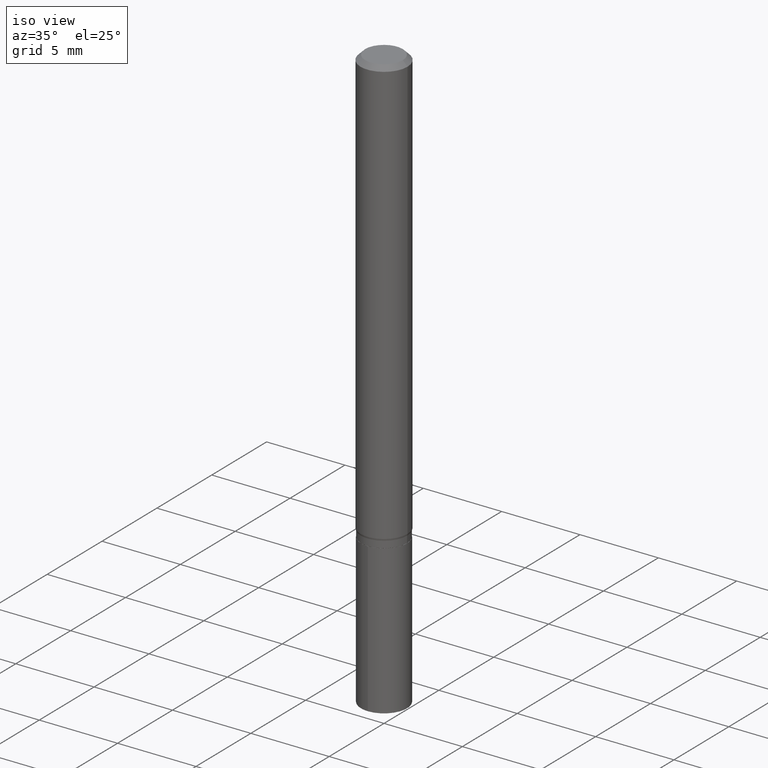
[diagram: clean part render]
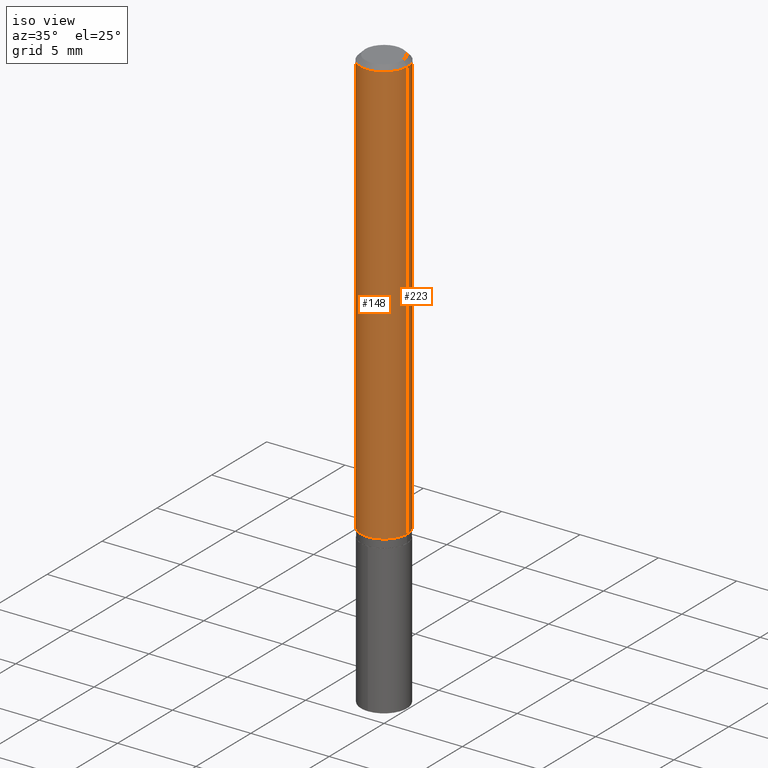
[diagram: same view with one multi-face feature highlighted, each face labeled with its STEP entity id]
A machine part, iso view. The highlighted faces form ONE feature: a constant-radius fillet chain: 2 tangent blend faces with common blend radius 1.4999 mm. The faces share edges in the B-rep.
Their STEP definitions:
[1] entity #223 (Cylinder):
#12 = CIRCLE ( 'NONE', #219, 0.05904999999999999832 ) ;
#22 = EDGE_CURVE ( 'NONE', #458, #137, #12, .T. ) ;
#37 = ORIENTED_EDGE ( 'NONE', *, *, #347, .T. ) ;
#46 = CARTESIAN_POINT ( 'NONE',  ( 0.05904999999999999832, -4.535783407291118600E-16, -0.01181000000000006871 ) ) ;
#51 = ORIENTED_EDGE ( 'NONE', *, *, #63, .F. ) ;
#63 = EDGE_CURVE ( 'NONE', #267, #458, #287, .T. ) ;
#66 = AXIS2_PLACEMENT_3D ( 'NONE', #480, #138, #187 ) ;
#77 = ORIENTED_EDGE ( 'NONE', *, *, #22, .F. ) ;
#80 = ORIENTED_EDGE ( 'NONE', *, *, #168, .T. ) ;
#93 = CARTESIAN_POINT ( 'NONE',  ( 0.05905000000000006771, -4.123439461173745257E-16, 2.879382386107503723E-30 ) ) ;
#96 = CARTESIAN_POINT ( 'NONE',  ( 2.888098660104663328E-31, -4.123439461173779030E-17, -0.01181000000000006871 ) ) ;
#111 = AXIS2_PLACEMENT_3D ( 'NONE', #345, #453, #268 ) ;
#130 = DIRECTION ( 'NONE',  ( -2.445468806185136877E-29, 3.491481338843145188E-15, 1.000000000000000000 ) ) ;
#137 = VERTEX_POINT ( 'NONE', #275 ) ;
#138 = DIRECTION ( 'NONE',  ( -2.445468806185136597E-29, 3.491481338843145583E-15, 1.000000000000000000 ) ) ;
#168 = EDGE_CURVE ( 'NONE', #256, #137, #326, .T. ) ;
#176 = FACE_OUTER_BOUND ( 'NONE', #269, .T. ) ;
#184 = CARTESIAN_POINT ( 'NONE',  ( -0.05905000000000013016, -3.325462601701321059E-15, -1.072621539030916837 ) ) ;
#187 = DIRECTION ( 'NONE',  ( 1.000000000000000000, -6.982962677686266711E-15, 4.876176775795936353E-29 ) ) ;
#200 = DIRECTION ( 'NONE',  ( -2.445468806185136877E-29, 3.491481338843145188E-15, 1.000000000000000000 ) ) ;
#215 = DIRECTION ( 'NONE',  ( -2.445468806185136597E-29, 3.491481338843145583E-15, 1.000000000000000000 ) ) ;
#219 = AXIS2_PLACEMENT_3D ( 'NONE', #96, #215, #282 ) ;
#223 = ADVANCED_FACE ( 'NONE', ( #176 ), #304, .T. ) ;
#256 = VERTEX_POINT ( 'NONE', #184 ) ;
#267 = VERTEX_POINT ( 'NONE', #300 ) ;
#268 = DIRECTION ( 'NONE',  ( 1.000000000000000000, -6.982962677686265133E-15, 0.000000000000000000 ) ) ;
#269 = EDGE_LOOP ( 'NONE', ( #37, #80, #77, #51 ) ) ;
#275 = CARTESIAN_POINT ( 'NONE',  ( -0.05904999999999999832, -1.473560755423358858E-15, -0.01181000000000006871 ) ) ;
#282 = DIRECTION ( 'NONE',  ( 1.000000000000000000, -6.982962677686266711E-15, 0.000000000000000000 ) ) ;
#287 = LINE ( 'NONE', #93, #357 ) ;
#300 = CARTESIAN_POINT ( 'NONE',  ( 0.05905000000000013016, -4.157382033285035472E-15, -1.072621539030916837 ) ) ;
#304 = CYLINDRICAL_SURFACE ( 'NONE', #66, 0.05905000000000006771 ) ;
#326 = LINE ( 'NONE', #474, #374 ) ;
#345 = CARTESIAN_POINT ( 'NONE',  ( 2.623062514542399904E-29, -3.745038087167660552E-15, -1.072621539030916837 ) ) ;
#347 = EDGE_CURVE ( 'NONE', #267, #256, #402, .T. ) ;
#357 = VECTOR ( 'NONE', #200, 39.37007874015748143 ) ;
#374 = VECTOR ( 'NONE', #130, 39.37007874015748143 ) ;
#402 = CIRCLE ( 'NONE', #111, 0.05905000000000013016 ) ;
#453 = DIRECTION ( 'NONE',  ( -2.445468806185136597E-29, 3.491481338843145583E-15, 1.000000000000000000 ) ) ;
#458 = VERTEX_POINT ( 'NONE', #46 ) ;
#474 = CARTESIAN_POINT ( 'NONE',  ( -0.05905000000000006771, 4.195754854663396409E-16, -2.904631170795525045E-30 ) ) ;
#480 = CARTESIAN_POINT ( 'NONE',  ( 0.000000000000000000, 0.000000000000000000, 0.000000000000000000 ) ) ;
[2] entity #148 (Cylinder):
#14 = DIRECTION ( 'NONE',  ( -2.445468806185136597E-29, 3.491481338843145583E-15, 1.000000000000000000 ) ) ;
#40 = EDGE_CURVE ( 'NONE', #137, #458, #118, .T. ) ;
#46 = CARTESIAN_POINT ( 'NONE',  ( 0.05904999999999999832, -4.535783407291118600E-16, -0.01181000000000006871 ) ) ;
#53 = DIRECTION ( 'NONE',  ( -2.445468806185136597E-29, 3.491481338843145583E-15, 1.000000000000000000 ) ) ;
#57 = EDGE_LOOP ( 'NONE', ( #467, #465, #386, #319 ) ) ;
#63 = EDGE_CURVE ( 'NONE', #267, #458, #287, .T. ) ;
#93 = CARTESIAN_POINT ( 'NONE',  ( 0.05905000000000006771, -4.123439461173745257E-16, 2.879382386107503723E-30 ) ) ;
#118 = CIRCLE ( 'NONE', #245, 0.05904999999999999832 ) ;
#130 = DIRECTION ( 'NONE',  ( -2.445468806185136877E-29, 3.491481338843145188E-15, 1.000000000000000000 ) ) ;
#137 = VERTEX_POINT ( 'NONE', #275 ) ;
#148 = ADVANCED_FACE ( 'NONE', ( #250 ), #396, .T. ) ;
#161 = AXIS2_PLACEMENT_3D ( 'NONE', #169, #53, #208 ) ;
#168 = EDGE_CURVE ( 'NONE', #256, #137, #326, .T. ) ;
#169 = CARTESIAN_POINT ( 'NONE',  ( 0.000000000000000000, 0.000000000000000000, 0.000000000000000000 ) ) ;
#184 = CARTESIAN_POINT ( 'NONE',  ( -0.05905000000000013016, -3.325462601701321059E-15, -1.072621539030916837 ) ) ;
#200 = DIRECTION ( 'NONE',  ( -2.445468806185136877E-29, 3.491481338843145188E-15, 1.000000000000000000 ) ) ;
#208 = DIRECTION ( 'NONE',  ( 1.000000000000000000, -6.982962677686266711E-15, 4.876176775795936353E-29 ) ) ;
#232 = DIRECTION ( 'NONE',  ( -2.445468806185136597E-29, 3.491481338843145583E-15, 1.000000000000000000 ) ) ;
#245 = AXIS2_PLACEMENT_3D ( 'NONE', #330, #14, #368 ) ;
#250 = FACE_OUTER_BOUND ( 'NONE', #57, .T. ) ;
#256 = VERTEX_POINT ( 'NONE', #184 ) ;
#267 = VERTEX_POINT ( 'NONE', #300 ) ;
#275 = CARTESIAN_POINT ( 'NONE',  ( -0.05904999999999999832, -1.473560755423358858E-15, -0.01181000000000006871 ) ) ;
#287 = LINE ( 'NONE', #93, #357 ) ;
#300 = CARTESIAN_POINT ( 'NONE',  ( 0.05905000000000013016, -4.157382033285035472E-15, -1.072621539030916837 ) ) ;
#319 = ORIENTED_EDGE ( 'NONE', *, *, #40, .F. ) ;
#326 = LINE ( 'NONE', #474, #374 ) ;
#329 = EDGE_CURVE ( 'NONE', #256, #267, #446, .T. ) ;
#330 = CARTESIAN_POINT ( 'NONE',  ( 2.888098660104663328E-31, -4.123439461173779030E-17, -0.01181000000000006871 ) ) ;
#353 = DIRECTION ( 'NONE',  ( 1.000000000000000000, -6.982962677686265133E-15, 0.000000000000000000 ) ) ;
#357 = VECTOR ( 'NONE', #200, 39.37007874015748143 ) ;
#368 = DIRECTION ( 'NONE',  ( 1.000000000000000000, -6.982962677686266711E-15, 0.000000000000000000 ) ) ;
#374 = VECTOR ( 'NONE', #130, 39.37007874015748143 ) ;
#386 = ORIENTED_EDGE ( 'NONE', *, *, #63, .T. ) ;
#396 = CYLINDRICAL_SURFACE ( 'NONE', #161, 0.05905000000000006771 ) ;
#446 = CIRCLE ( 'NONE', #452, 0.05905000000000013016 ) ;
#452 = AXIS2_PLACEMENT_3D ( 'NONE', #487, #232, #353 ) ;
#458 = VERTEX_POINT ( 'NONE', #46 ) ;
#465 = ORIENTED_EDGE ( 'NONE', *, *, #329, .T. ) ;
#467 = ORIENTED_EDGE ( 'NONE', *, *, #168, .F. ) ;
#474 = CARTESIAN_POINT ( 'NONE',  ( -0.05905000000000006771, 4.195754854663396409E-16, -2.904631170795525045E-30 ) ) ;
#487 = CARTESIAN_POINT ( 'NONE',  ( 2.623062514542399904E-29, -3.745038087167660552E-15, -1.072621539030916837 ) ) ;